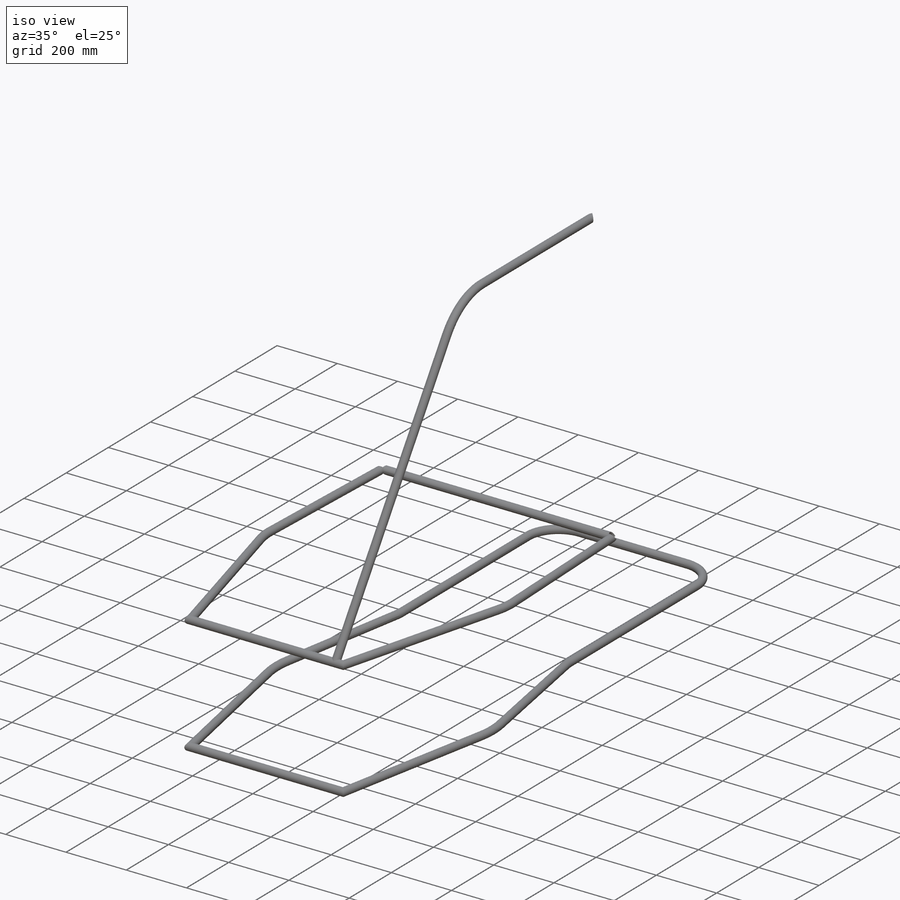
[diagram: iso view]
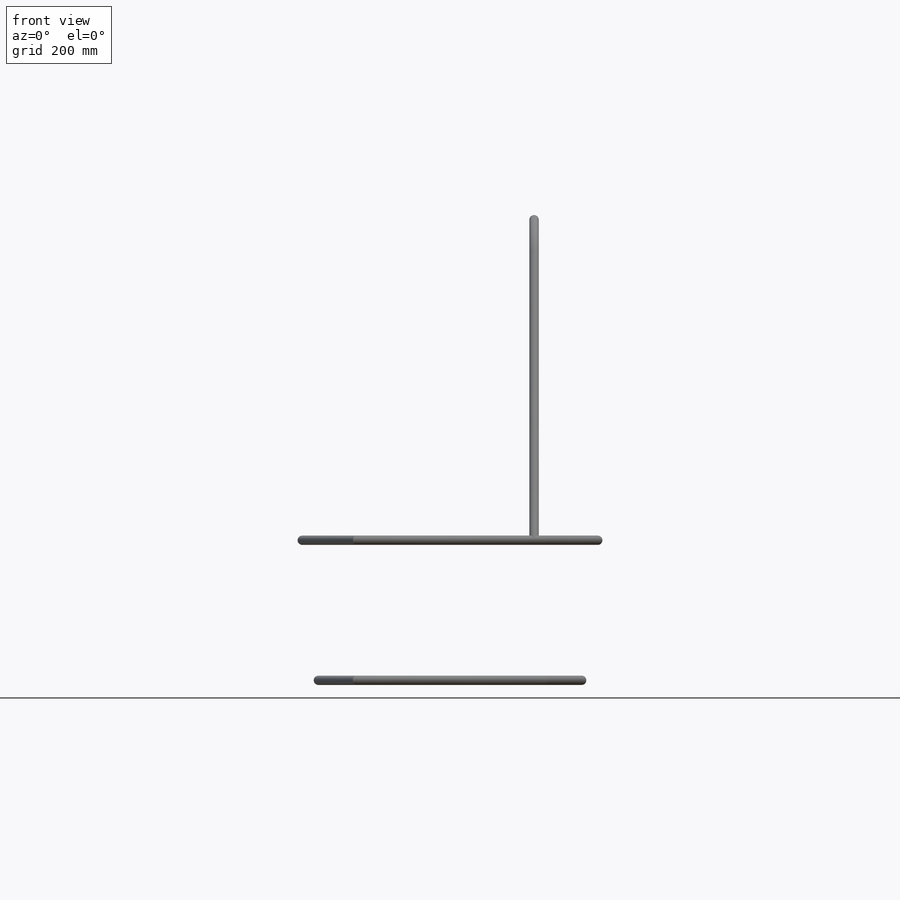
[diagram: front view]
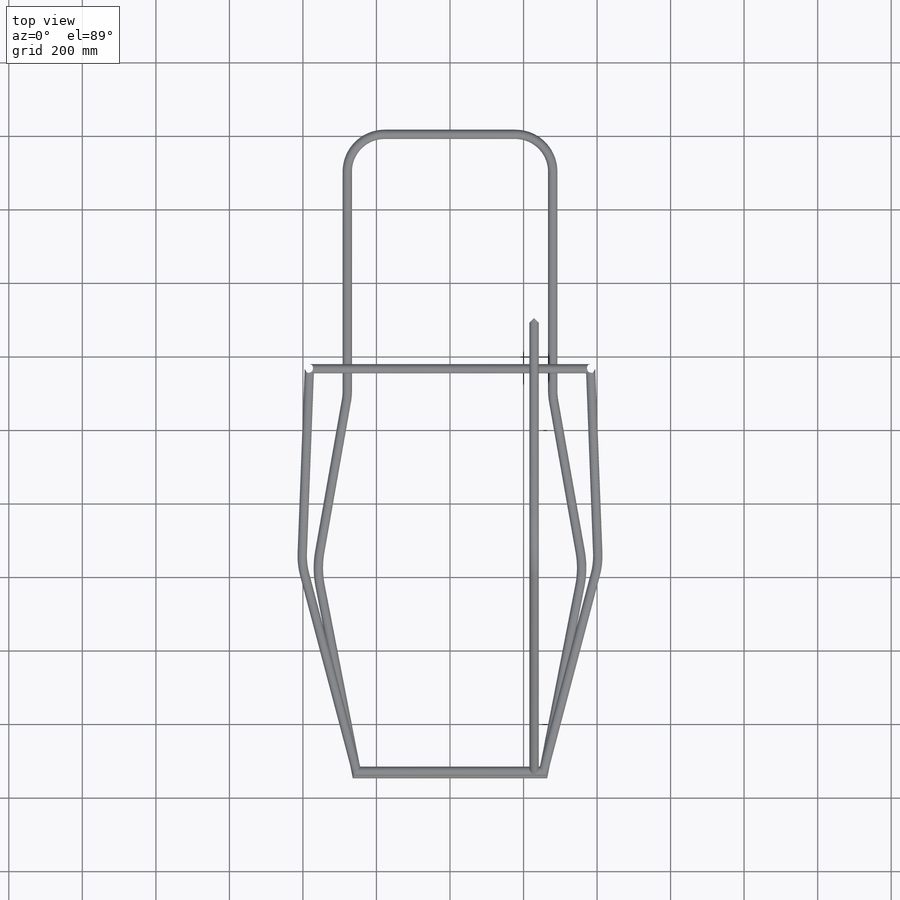
[diagram: top view]
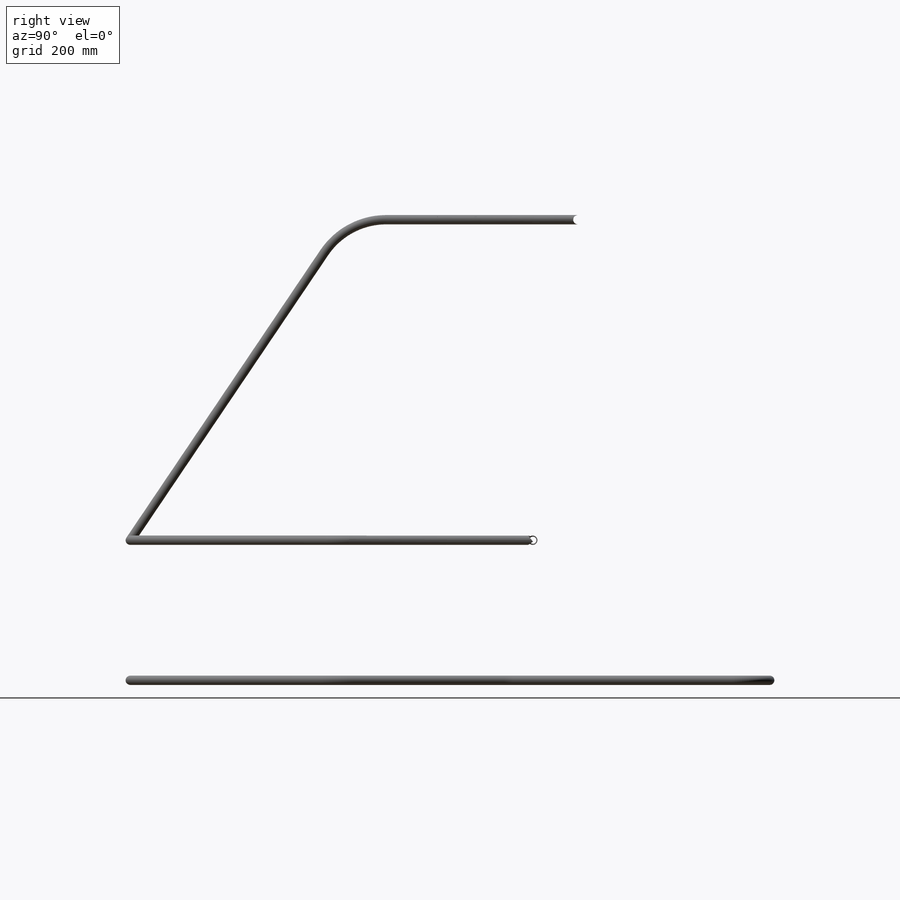
[diagram: right view]
SOLIDWORKS PART (.sldprt)
format: sldprt  version: not decoded by parser v0  size: 3,554,816 bytes
history: native  units: mm
features: sketch x27, plane x17, fillet x8, extrude x2, material x1, cut_extrude x1, mirror x1 + 62 further entries (+11 scaffold rows collapsed)
feature tree (130):
  scaffold x11  (default folders/planes/origin — collapsed)
  material  "AISI 1020"
  "Cut-List-Item2"
  "Cut-List-Item3"
  "Cut-List-Item4"
  "Cut-List-Item5"
  "Cut-List-Item6"
  "Cut-List-Item7"
  "Cut-List-Item8"
  "Cut-List-Item9"
  "Cut-List-Item10"
  "Cut-List-Item11"
  "Cut-List-Item12"
  "Cut-List-Item13"
  "Cut-List-Item14"
  "Cut-List-Item15"
  "Cut-List-Item16"
  "Cut-List-Item17"
  "Cut-List-Item18"
  "Cut-List-Item19"
  "Cut-List-Item20"
  "Cut-List-Item21"
  "Cut-List-Item22"
  "Cut-List-Item23"
  "Cut-List-Item24"
  "Cut-List-Item25"
  "Cut-List-Item26"
  "Cut-List-Item27"
  "Cut-List-Item28"
  "Cut-List-Item29"
  "Cut-List-Item30"
  "Cut-List-Item31"
  "Cut-List-Item32"
  "Cut-List-Item33"
  "Cut-List-Item34"
  "Cut-List-Item35"
  "Cut-List-Item36"
  "Cut-List-Item37"
  "Cut-List-Item38"
  "Cut-List-Item40"
  "Cut-List-Item41"
  "Cut-List-Item42"
  "Cut-List-Item43"
  "Cut-List-Item44"
  "Cut-List-Item45"
  "Cut-List-Item46"
  "Cut-List-Item47"
  "Cut-List-Item48"
  "Cut-List-Item49"
  "Cut-List-Item50"
  "Cut-List-Item51"
  "Cut-List-Item52"
  "Cut-List-Item53"
  "Cut-List-Item54"
  "Cut-List-Item55"
  "Cut-List-Item56"
  "Cut-List-Item57"
  "Cut-List-Item58"
  "Cut-List-Item59"
  "Cut-List-Item60"
  "Cut-List-Item61"
  "Cut-List-Item62"
  "Cut-List-Item63"
  "Cut-List-Item64"
  sketch  "3DSketch1"  dims[c1.D6=101.6mm c1.D7=254.0mm c1.D9=152.4mm c1.D1=~156.836109mm c1.D2=1041.4mm c2.D1=1041.4mm c2.D2=508.0mm c3.D2=558.8mm c3.D3=~201.253519mm c4.D3=170.0deg c4.D4=~458.660404mm c5.D4=101.0deg c5.D5=~582.739596mm c6.D5=100.0deg c7.D5=711.2mm c7.D8=508.0mm c7.D9=558.8mm]
  plane  "Plane1"
  sketch  "3DSketch2"  dims[c1.D5=254.0mm c1.D1=~664.497973mm c1.D6=1270.0mm c1.D2=609.6mm c1.D3=~614.942225mm c2.D3=101.0deg c2.D4=~148.107246mm c3.D4=154.0deg c3.D6=~635.213702mm c3.D1=632.3584mm c4.D6=~607.562746mm]
  sketch  "3DSketch7"  dims[D1=381.0mm D2=381.0mm]
  plane  "Plane3"
  sketch  "Sketch1"  dims[c1.D1=583.2602mm c1.D2=544.8046mm c1.D3=194.4058mm c2.D3=163.0deg c2.D4=583.2602mm c2.D5=~531.416472mm c2.D2=~185.144221mm c3.D2=163.0deg c4.D2=508.0mm]
  sketch  "3DSketch8"  dims[D1=25.4mm D2=25.4mm]
  plane  "Plane4"
  sketch  "Sketch2"  dims[c1.D2=203.2mm c1.D1=~156.556932mm c2.D1=56.0deg c2.D3=~871.851384mm]
  plane  "Plane5"
  sketch  "Sketch3"
  sketch  "3DSketch9"  dims[D1=25.4mm D2=25.4mm]
  plane  "Plane6"
  sketch  "Sketch4"  dims[c1.D3=152.4mm c1.D4=203.2mm c1.D1=203.2mm c1.D2=203.2mm c2.D2=108.0deg c2.D5=~559.285424mm c3.D5=162.0deg c4.D5=~420.189948mm]
  plane  "Plane7"
  sketch  "Sketch5"
  plane  "Plane8"
  sketch  "Sketch6"  dims[c1.D3=152.4mm c1.D6=152.4mm c1.D1=~259.012619mm c2.D1=87.0deg c2.D2=~258.657651mm c3.D2=90.0deg c4.D2=~258.657651mm c5.D2=87.0deg c5.D4=254.0mm c5.D5=254.0mm c5.D7=101.6mm c5.D8=76.2mm c5.D9=215.9mm]
  plane  "Plane9"
  sketch  "Sketch7"  dims[D1=101.6mm D2=76.2mm D3=203.2mm]
  sketch  "3DSketch10"  dims[c1.D1=228.6mm c1.D2=203.2mm c1.D3=203.2mm c1.D4=228.6mm c1.D5=88.9mm c1.D6=88.9mm c1.D7=177.8mm c1.D8=177.8mm c1.D9=~403.331798mm c1.D11=381.0mm c1.D10=~322.482607mm c2.D9=381.0mm]
  plane  "Plane16"
  sketch  "Sketch22"  dims[D1=25.4mm]
  plane  "Plane17"  Offset=12.7mm
  plane  "Plane18"  Offset=25.4mm
  plane  "Plane10"
  sketch  "Sketch11"  dims[D1=25.4mm D2=3.048mm]
  sketch  "Sketch25"  dims[D1=76.2mm D2=50.8mm D3=25.4mm D4=25.4mm]
  sketch  "Sketch27"  dims[D1=78.862mm D2=53.462mm D3=1.331mm D4=1.331mm]
  extrude  "Boss-Extrude2"  Depth=6mm
  extrude  "Boss-Extrude3"  Depth=6mm
  sketch  "Sketch30"  dims[D1=14.0mm D2=25.4mm D3=19.05mm]
  cut_extrude  "Cut-Extrude1"  Depth=142.398mm
  mirror  "Mirror5"
  fillet  "Fillet3"  Radius=25.4mm
  fillet  "Fillet4"  Radius=26.67mm
  fillet  "Fillet5"  Radius=1mm
  fillet  "Fillet6"  Radius=1mm
  fillet  "Fillet7"  Radius=25.4mm
  fillet  "Fillet8"  Radius=26.67mm
  fillet  "Fillet9"  Radius=1mm
  fillet  "Fillet10"  Radius=1mm
  sketch  "Sketch13"
  sketch  "Sketch14"
  sketch  "Sketch15"
  sketch  "Sketch16"
  sketch  "Sketch17"
  plane  "Plane11"
  sketch  "Sketch18"
  plane  "Plane12"
  sketch  "Sketch19"
  plane  "Plane13"
  sketch  "Sketch20"
  plane  "Plane14"
  sketch  "Sketch21"
  plane  "Plane15"
decode coverage: 27 of 39 modeling features carry decoded parameters; 62 rows unclassified (native names shown)
note: ~ marks probable driven/reference dimensions
note: suppression state not decoded; provenance and decode notes live in map.json
